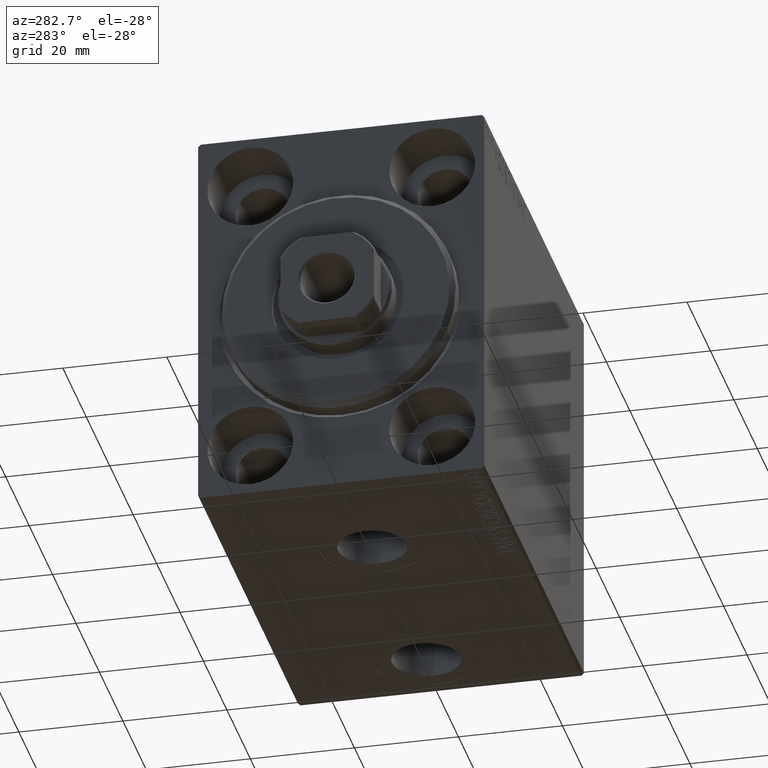
[diagram: clean part render]
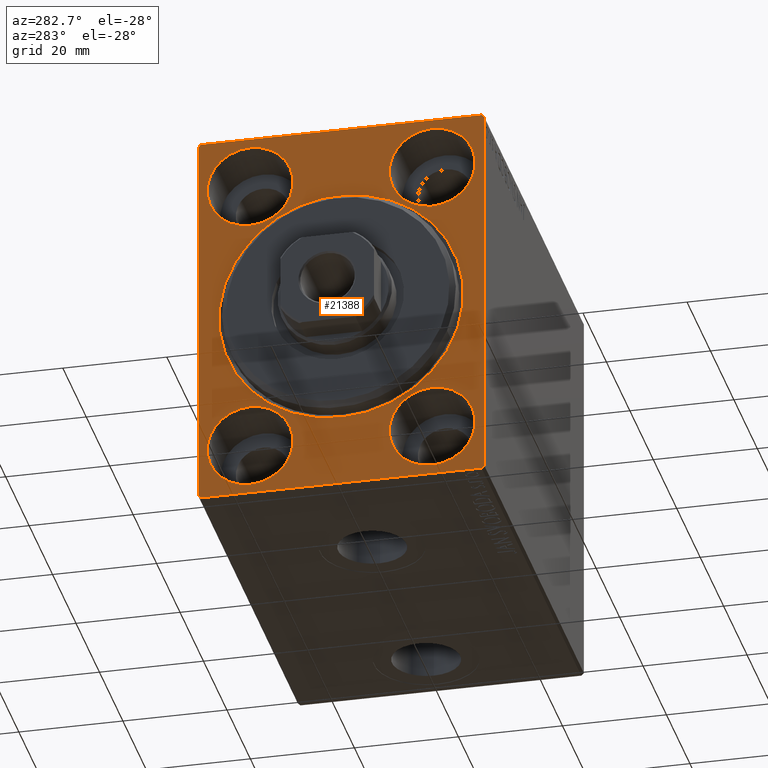
[diagram: same view with one face highlighted and labeled with its STEP entity id]
A machine part, auxiliary view. The second image highlights one B-rep face of the part: STEP entity #21388.
In plain terms, the highlighted planar face has unit normal (1, 0, 0).
Its self-contained STEP definition (entity closure, byte-faithful):
#60 = CARTESIAN_POINT ( 'NONE',  ( 0.000000000000000000, 0.000000000000000000, 0.000000000000000000 ) ) ;
#658 = CIRCLE ( 'NONE', #40808, 8.249999999999992895 ) ;
#666 = DIRECTION ( 'NONE',  ( 1.000000000000000000, 0.000000000000000000, 0.000000000000000000 ) ) ;
#1246 = CARTESIAN_POINT ( 'NONE',  ( 0.000000000000000000, -17.49999999999999645, 27.49999999999999645 ) ) ;
#1368 = DIRECTION ( 'NONE',  ( 0.000000000000000000, -0.7071067811865474617, -0.7071067811865474617 ) ) ;
#1715 = EDGE_LOOP ( 'NONE', ( #25912, #24126 ) ) ;
#1946 = LINE ( 'NONE', #40571, #16577 ) ;
#2225 = ORIENTED_EDGE ( 'NONE', *, *, #36694, .F. ) ;
#2602 = CIRCLE ( 'NONE', #30385, 8.250000000000000000 ) ;
#2606 = FACE_BOUND ( 'NONE', #43473, .T. ) ;
#2659 = ORIENTED_EDGE ( 'NONE', *, *, #6199, .F. ) ;
#2924 = AXIS2_PLACEMENT_3D ( 'NONE', #60, #30931, #16575 ) ;
#3523 = DIRECTION ( 'NONE',  ( 0.000000000000000000, 0.000000000000000000, 1.000000000000000000 ) ) ;
#3642 = DIRECTION ( 'NONE',  ( 1.000000000000000000, 0.000000000000000000, 0.000000000000000000 ) ) ;
#4008 = CARTESIAN_POINT ( 'NONE',  ( 0.000000000000000000, 17.50000000000000355, 19.25000000000000000 ) ) ;
#4456 = EDGE_CURVE ( 'NONE', #35153, #30971, #1946, .T. ) ;
#4499 = VECTOR ( 'NONE', #39767, 1000.000000000000000 ) ;
#5967 = AXIS2_PLACEMENT_3D ( 'NONE', #42029, #3642, #37699 ) ;
#6199 = EDGE_CURVE ( 'NONE', #41871, #31869, #2602, .T. ) ;
#6723 = DIRECTION ( 'NONE',  ( 0.000000000000000000, -9.251858538542970348E-17, 1.000000000000000000 ) ) ;
#6821 = ORIENTED_EDGE ( 'NONE', *, *, #16005, .F. ) ;
#6847 = VERTEX_POINT ( 'NONE', #11445 ) ;
#7465 = LINE ( 'NONE', #35343, #25160 ) ;
#7487 = ORIENTED_EDGE ( 'NONE', *, *, #27595, .T. ) ;
#7560 = AXIS2_PLACEMENT_3D ( 'NONE', #18282, #32213, #32657 ) ;
#7870 = ORIENTED_EDGE ( 'NONE', *, *, #37858, .F. ) ;
#8349 = CARTESIAN_POINT ( 'NONE',  ( 0.000000000000000000, 17.49999999999999645, -35.75000000000000711 ) ) ;
#8416 = EDGE_CURVE ( 'NONE', #19869, #12639, #32684, .T. ) ;
#8677 = CARTESIAN_POINT ( 'NONE',  ( 0.000000000000000000, -17.50000000000000355, -27.50000000000000355 ) ) ;
#8754 = VECTOR ( 'NONE', #6723, 1000.000000000000000 ) ;
#9044 = CARTESIAN_POINT ( 'NONE',  ( 0.000000000000000000, 27.50000000000000355, -37.00000000000000000 ) ) ;
#9147 = DIRECTION ( 'NONE',  ( -1.000000000000000000, 0.000000000000000000, 0.000000000000000000 ) ) ;
#10077 = ORIENTED_EDGE ( 'NONE', *, *, #36068, .T. ) ;
#10578 = DIRECTION ( 'NONE',  ( 0.000000000000000000, 0.000000000000000000, 1.000000000000000000 ) ) ;
#10584 = FACE_BOUND ( 'NONE', #1715, .T. ) ;
#10603 = DIRECTION ( 'NONE',  ( -1.000000000000000000, 0.000000000000000000, 0.000000000000000000 ) ) ;
#10691 = VERTEX_POINT ( 'NONE', #4008 ) ;
#10794 = DIRECTION ( 'NONE',  ( -1.000000000000000000, 0.000000000000000000, 0.000000000000000000 ) ) ;
#11163 = VERTEX_POINT ( 'NONE', #34972 ) ;
#11445 = CARTESIAN_POINT ( 'NONE',  ( 0.000000000000000000, 2.877919977996280715E-15, -23.50000000000000355 ) ) ;
#12446 = VERTEX_POINT ( 'NONE', #13209 ) ;
#12639 = VERTEX_POINT ( 'NONE', #32119 ) ;
#12702 = CARTESIAN_POINT ( 'NONE',  ( 0.000000000000000000, 17.50000000000000355, 35.74999999999999289 ) ) ;
#12736 = VERTEX_POINT ( 'NONE', #12702 ) ;
#13209 = CARTESIAN_POINT ( 'NONE',  ( 0.000000000000000000, -27.50000000000000355, 37.00000000000000000 ) ) ;
#13222 = AXIS2_PLACEMENT_3D ( 'NONE', #31241, #31464, #35545 ) ;
#13446 = VECTOR ( 'NONE', #23127, 1000.000000000000000 ) ;
#14030 = FACE_BOUND ( 'NONE', #23424, .T. ) ;
#14864 = AXIS2_PLACEMENT_3D ( 'NONE', #35177, #666, #42046 ) ;
#14972 = DIRECTION ( 'NONE',  ( 0.000000000000000000, 0.000000000000000000, 1.000000000000000000 ) ) ;
#15321 = VECTOR ( 'NONE', #26161, 1000.000000000000114 ) ;
#15380 = CARTESIAN_POINT ( 'NONE',  ( 0.000000000000000000, 26.99999999999999645, 37.50000000000000711 ) ) ;
#15470 = VERTEX_POINT ( 'NONE', #18328 ) ;
#15825 = LINE ( 'NONE', #40485, #13446 ) ;
#16005 = EDGE_CURVE ( 'NONE', #10691, #12736, #658, .T. ) ;
#16096 = CARTESIAN_POINT ( 'NONE',  ( 0.000000000000000000, -17.49999999999999645, 19.25000000000000000 ) ) ;
#16305 = DIRECTION ( 'NONE',  ( -0.000000000000000000, 0.7071067811865524577, -0.7071067811865426878 ) ) ;
#16575 = DIRECTION ( 'NONE',  ( 0.000000000000000000, 0.000000000000000000, -1.000000000000000000 ) ) ;
#16577 = VECTOR ( 'NONE', #29371, 1000.000000000000000 ) ;
#17555 = AXIS2_PLACEMENT_3D ( 'NONE', #31178, #10603, #3523 ) ;
#17604 = ORIENTED_EDGE ( 'NONE', *, *, #33213, .F. ) ;
#17765 = VECTOR ( 'NONE', #16305, 1000.000000000000000 ) ;
#18002 = ORIENTED_EDGE ( 'NONE', *, *, #4456, .F. ) ;
#18008 = DIRECTION ( 'NONE',  ( -0.000000000000000000, 0.7071067811865474617, 0.7071067811865474617 ) ) ;
#18282 = CARTESIAN_POINT ( 'NONE',  ( 0.000000000000000000, 17.50000000000000355, 27.49999999999999645 ) ) ;
#18328 = CARTESIAN_POINT ( 'NONE',  ( 0.000000000000000000, -27.00000000000000355, -37.50000000000000000 ) ) ;
#18585 = EDGE_LOOP ( 'NONE', ( #37688, #10077, #18002, #43324, #42814, #23249, #26085, #30099 ) ) ;
#19759 = ORIENTED_EDGE ( 'NONE', *, *, #25179, .F. ) ;
#19869 = VERTEX_POINT ( 'NONE', #9044 ) ;
#20226 = CARTESIAN_POINT ( 'NONE',  ( 0.000000000000000000, -27.50000000000000355, -37.00000000000000000 ) ) ;
#20546 = AXIS2_PLACEMENT_3D ( 'NONE', #1246, #24821, #22055 ) ;
#20738 = AXIS2_PLACEMENT_3D ( 'NONE', #27633, #24870, #21217 ) ;
#21190 = CIRCLE ( 'NONE', #17555, 8.250000000000000000 ) ;
#21217 = DIRECTION ( 'NONE',  ( 0.000000000000000000, 0.000000000000000000, 1.000000000000000000 ) ) ;
#21323 = LINE ( 'NONE', #15380, #17765 ) ;
#21388 = ADVANCED_FACE ( 'NONE', ( #41220, #10584, #14030, #2606, #27951, #33917 ), #23629, .F. ) ;
#21584 = CARTESIAN_POINT ( 'NONE',  ( 0.000000000000000000, 17.50000000000000355, 27.49999999999999645 ) ) ;
#22017 = EDGE_CURVE ( 'NONE', #15470, #42543, #40090, .T. ) ;
#22055 = DIRECTION ( 'NONE',  ( 0.000000000000000000, 0.000000000000000000, 1.000000000000000000 ) ) ;
#22360 = VERTEX_POINT ( 'NONE', #33926 ) ;
#22912 = CIRCLE ( 'NONE', #7560, 8.249999999999992895 ) ;
#23127 = DIRECTION ( 'NONE',  ( 0.000000000000000000, 0.000000000000000000, -1.000000000000000000 ) ) ;
#23238 = ORIENTED_EDGE ( 'NONE', *, *, #31542, .T. ) ;
#23249 = ORIENTED_EDGE ( 'NONE', *, *, #8416, .T. ) ;
#23315 = EDGE_CURVE ( 'NONE', #19869, #22360, #34158, .T. ) ;
#23416 = EDGE_CURVE ( 'NONE', #11163, #26847, #21190, .T. ) ;
#23424 = EDGE_LOOP ( 'NONE', ( #19759, #17604 ) ) ;
#23629 = PLANE ( 'NONE',  #2924 ) ;
#24126 = ORIENTED_EDGE ( 'NONE', *, *, #24294, .F. ) ;
#24294 = EDGE_CURVE ( 'NONE', #26847, #11163, #42371, .T. ) ;
#24821 = DIRECTION ( 'NONE',  ( -1.000000000000000000, 0.000000000000000000, 0.000000000000000000 ) ) ;
#24870 = DIRECTION ( 'NONE',  ( -1.000000000000000000, 0.000000000000000000, 0.000000000000000000 ) ) ;
#25160 = VECTOR ( 'NONE', #18008, 1000.000000000000114 ) ;
#25179 = EDGE_CURVE ( 'NONE', #34828, #26350, #34391, .T. ) ;
#25912 = ORIENTED_EDGE ( 'NONE', *, *, #23416, .F. ) ;
#26085 = ORIENTED_EDGE ( 'NONE', *, *, #28214, .F. ) ;
#26161 = DIRECTION ( 'NONE',  ( -0.000000000000000000, -0.7071067811865474617, 0.7071067811865474617 ) ) ;
#26350 = VERTEX_POINT ( 'NONE', #16096 ) ;
#26739 = CARTESIAN_POINT ( 'NONE',  ( 0.000000000000000000, -17.49999999999999645, 35.74999999999999289 ) ) ;
#26847 = VERTEX_POINT ( 'NONE', #8349 ) ;
#27595 = EDGE_CURVE ( 'NONE', #6847, #27730, #28593, .T. ) ;
#27633 = CARTESIAN_POINT ( 'NONE',  ( 0.000000000000000000, -17.50000000000000355, -27.50000000000000355 ) ) ;
#27730 = VERTEX_POINT ( 'NONE', #40639 ) ;
#27951 = FACE_BOUND ( 'NONE', #38650, .T. ) ;
#28171 = CARTESIAN_POINT ( 'NONE',  ( 0.000000000000000000, -17.49999999999999645, 27.49999999999999645 ) ) ;
#28214 = EDGE_CURVE ( 'NONE', #15470, #12639, #35658, .T. ) ;
#28241 = VECTOR ( 'NONE', #1368, 1000.000000000000114 ) ;
#28593 = CIRCLE ( 'NONE', #5967, 23.50000000000000355 ) ;
#28721 = CIRCLE ( 'NONE', #14864, 23.50000000000000355 ) ;
#29371 = DIRECTION ( 'NONE',  ( 0.000000000000000000, -1.000000000000000000, -1.261617073437677999E-16 ) ) ;
#30099 = ORIENTED_EDGE ( 'NONE', *, *, #22017, .T. ) ;
#30385 = AXIS2_PLACEMENT_3D ( 'NONE', #8677, #9147, #36546 ) ;
#30779 = CARTESIAN_POINT ( 'NONE',  ( 0.000000000000000000, 26.99999999999999645, 37.50000000000000711 ) ) ;
#30931 = DIRECTION ( 'NONE',  ( 1.000000000000000000, 0.000000000000000000, 0.000000000000000000 ) ) ;
#30971 = VERTEX_POINT ( 'NONE', #36404 ) ;
#31178 = CARTESIAN_POINT ( 'NONE',  ( 0.000000000000000000, 17.49999999999999645, -27.50000000000000355 ) ) ;
#31241 = CARTESIAN_POINT ( 'NONE',  ( 0.000000000000000000, 17.49999999999999645, -27.50000000000000355 ) ) ;
#31464 = DIRECTION ( 'NONE',  ( -1.000000000000000000, 0.000000000000000000, 0.000000000000000000 ) ) ;
#31542 = EDGE_CURVE ( 'NONE', #27730, #6847, #28721, .T. ) ;
#31869 = VERTEX_POINT ( 'NONE', #42998 ) ;
#32119 = CARTESIAN_POINT ( 'NONE',  ( 0.000000000000000000, 27.00000000000000355, -37.50000000000000000 ) ) ;
#32213 = DIRECTION ( 'NONE',  ( -1.000000000000000000, 0.000000000000000000, 0.000000000000000000 ) ) ;
#32657 = DIRECTION ( 'NONE',  ( 0.000000000000000000, 0.000000000000000000, 1.000000000000000000 ) ) ;
#32684 = LINE ( 'NONE', #43660, #28241 ) ;
#33012 = EDGE_LOOP ( 'NONE', ( #23238, #7487 ) ) ;
#33213 = EDGE_CURVE ( 'NONE', #26350, #34828, #36031, .T. ) ;
#33473 = EDGE_CURVE ( 'NONE', #12446, #42543, #15825, .T. ) ;
#33917 = FACE_OUTER_BOUND ( 'NONE', #18585, .T. ) ;
#33926 = CARTESIAN_POINT ( 'NONE',  ( 0.000000000000000000, 27.49999999999999645, 37.00000000000001421 ) ) ;
#34158 = LINE ( 'NONE', #34373, #8754 ) ;
#34373 = CARTESIAN_POINT ( 'NONE',  ( 0.000000000000000000, 27.50000000000000355, -37.50000000000000000 ) ) ;
#34391 = CIRCLE ( 'NONE', #20546, 8.249999999999992895 ) ;
#34828 = VERTEX_POINT ( 'NONE', #26739 ) ;
#34972 = CARTESIAN_POINT ( 'NONE',  ( 0.000000000000000000, 17.49999999999999645, -19.25000000000000355 ) ) ;
#35153 = VERTEX_POINT ( 'NONE', #30779 ) ;
#35177 = CARTESIAN_POINT ( 'NONE',  ( 0.000000000000000000, 0.000000000000000000, 0.000000000000000000 ) ) ;
#35343 = CARTESIAN_POINT ( 'NONE',  ( 0.000000000000000000, -27.50000000000000355, 37.00000000000000000 ) ) ;
#35405 = CARTESIAN_POINT ( 'NONE',  ( 0.000000000000000000, -17.50000000000000355, -35.75000000000000711 ) ) ;
#35545 = DIRECTION ( 'NONE',  ( 0.000000000000000000, 0.000000000000000000, 1.000000000000000000 ) ) ;
#35557 = EDGE_CURVE ( 'NONE', #35153, #22360, #21323, .T. ) ;
#35658 = LINE ( 'NONE', #39312, #4499 ) ;
#36031 = CIRCLE ( 'NONE', #41857, 8.249999999999992895 ) ;
#36068 = EDGE_CURVE ( 'NONE', #12446, #30971, #7465, .T. ) ;
#36177 = DIRECTION ( 'NONE',  ( -1.000000000000000000, 0.000000000000000000, 0.000000000000000000 ) ) ;
#36404 = CARTESIAN_POINT ( 'NONE',  ( 0.000000000000000000, -27.00000000000000355, 37.50000000000000000 ) ) ;
#36546 = DIRECTION ( 'NONE',  ( 0.000000000000000000, 0.000000000000000000, 1.000000000000000000 ) ) ;
#36694 = EDGE_CURVE ( 'NONE', #12736, #10691, #22912, .T. ) ;
#37688 = ORIENTED_EDGE ( 'NONE', *, *, #33473, .F. ) ;
#37699 = DIRECTION ( 'NONE',  ( 0.000000000000000000, 0.000000000000000000, -1.000000000000000000 ) ) ;
#37858 = EDGE_CURVE ( 'NONE', #31869, #41871, #41882, .T. ) ;
#38650 = EDGE_LOOP ( 'NONE', ( #7870, #2659 ) ) ;
#39312 = CARTESIAN_POINT ( 'NONE',  ( 0.000000000000000000, -27.50000000000000355, -37.50000000000000000 ) ) ;
#39767 = DIRECTION ( 'NONE',  ( 0.000000000000000000, 1.000000000000000000, 0.000000000000000000 ) ) ;
#40090 = LINE ( 'NONE', #43986, #15321 ) ;
#40485 = CARTESIAN_POINT ( 'NONE',  ( 0.000000000000000000, -27.50000000000000355, 37.50000000000000000 ) ) ;
#40571 = CARTESIAN_POINT ( 'NONE',  ( 0.000000000000000000, 27.49999999999999645, 37.50000000000000711 ) ) ;
#40639 = CARTESIAN_POINT ( 'NONE',  ( 0.000000000000000000, 0.000000000000000000, 23.50000000000000355 ) ) ;
#40808 = AXIS2_PLACEMENT_3D ( 'NONE', #21584, #36177, #14972 ) ;
#41220 = FACE_BOUND ( 'NONE', #33012, .T. ) ;
#41857 = AXIS2_PLACEMENT_3D ( 'NONE', #28171, #10794, #10578 ) ;
#41871 = VERTEX_POINT ( 'NONE', #35405 ) ;
#41882 = CIRCLE ( 'NONE', #20738, 8.250000000000000000 ) ;
#42029 = CARTESIAN_POINT ( 'NONE',  ( 0.000000000000000000, 0.000000000000000000, 0.000000000000000000 ) ) ;
#42046 = DIRECTION ( 'NONE',  ( 0.000000000000000000, 0.000000000000000000, -1.000000000000000000 ) ) ;
#42371 = CIRCLE ( 'NONE', #13222, 8.250000000000000000 ) ;
#42543 = VERTEX_POINT ( 'NONE', #20226 ) ;
#42814 = ORIENTED_EDGE ( 'NONE', *, *, #23315, .F. ) ;
#42998 = CARTESIAN_POINT ( 'NONE',  ( 0.000000000000000000, -17.50000000000000355, -19.25000000000000355 ) ) ;
#43324 = ORIENTED_EDGE ( 'NONE', *, *, #35557, .T. ) ;
#43473 = EDGE_LOOP ( 'NONE', ( #2225, #6821 ) ) ;
#43660 = CARTESIAN_POINT ( 'NONE',  ( 0.000000000000000000, 27.50000000000000355, -37.00000000000000000 ) ) ;
#43986 = CARTESIAN_POINT ( 'NONE',  ( 0.000000000000000000, -27.00000000000000355, -37.50000000000000000 ) ) ;